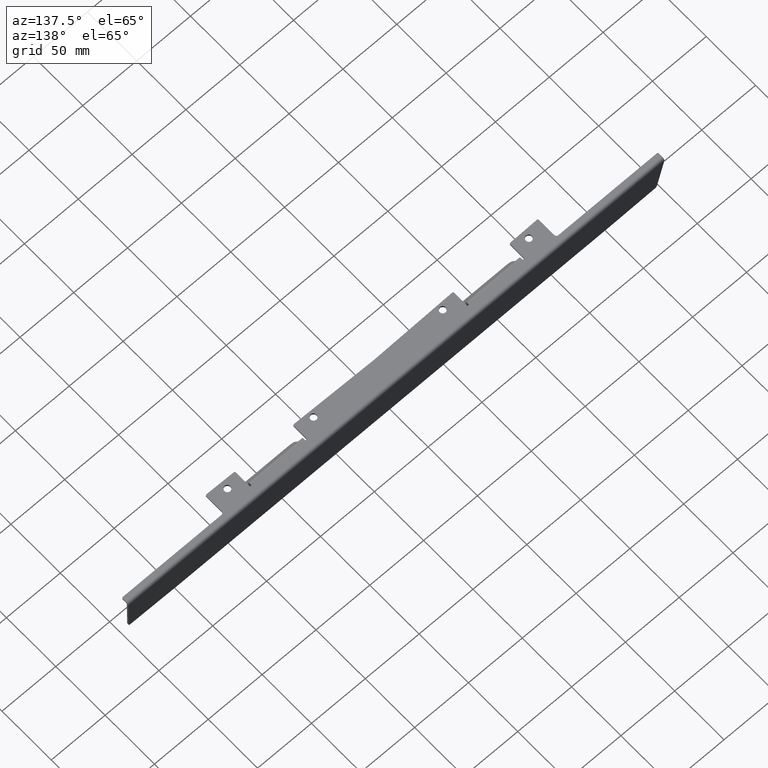
[diagram: clean part render]
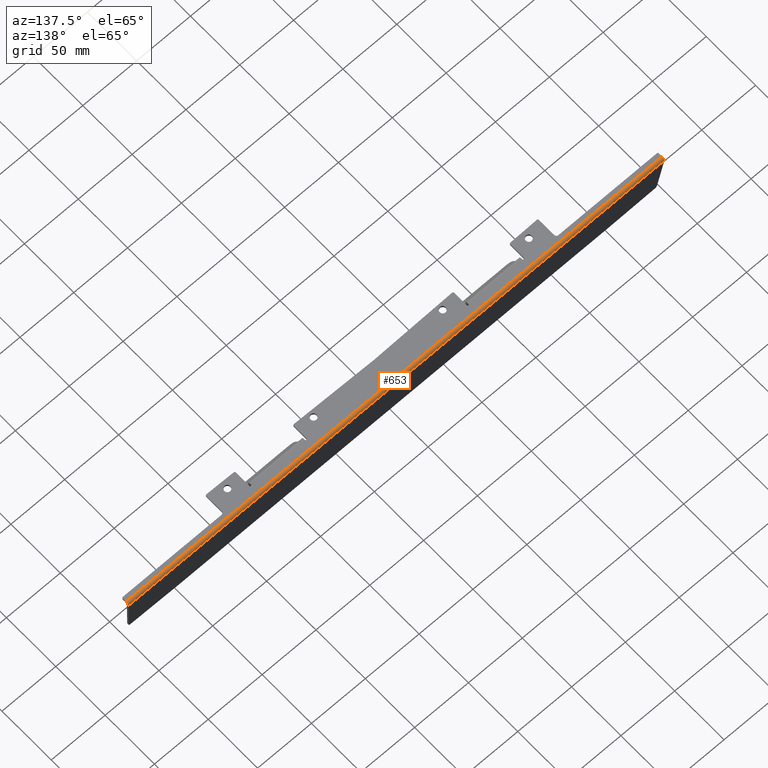
[diagram: same view with one face highlighted and labeled with its STEP entity id]
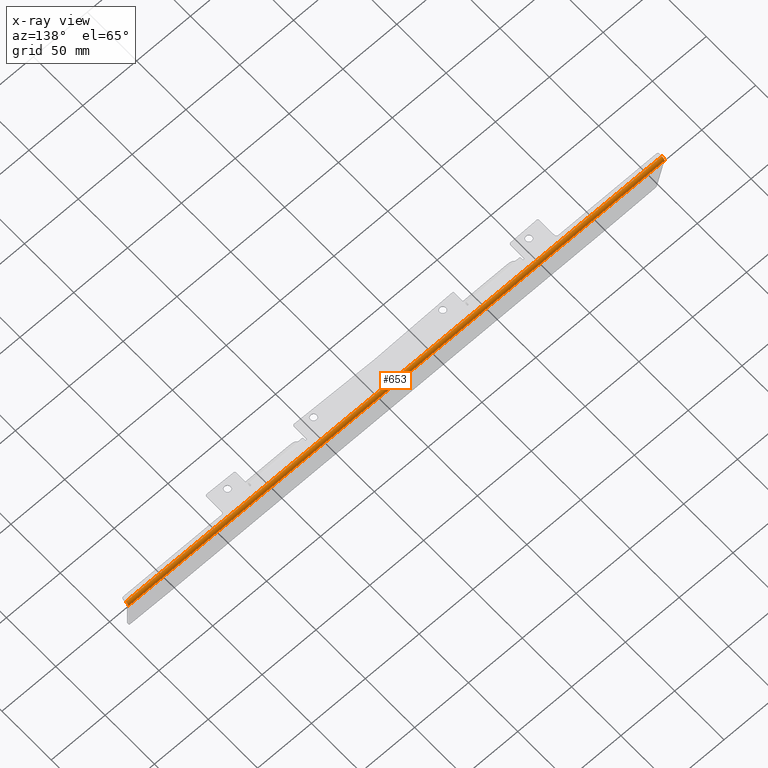
[diagram: x-ray of the same camera — body ghosted, the highlighted face saturated]
A machine part, auxiliary view. The second image highlights one B-rep face of the part: STEP entity #653.
The next image is the same camera in x-ray: the body ghosted, the highlighted face saturated — about 0% of this face is hidden behind the body in this view.
In plain terms, the highlighted cylindrical surface (edge-blend (fillet) strip) has radius 2.5 mm, axis along (1, 0, 0).
Its self-contained STEP definition (entity closure, byte-faithful):
#123 = VERTEX_POINT ( 'NONE', #2293 ) ;
#166 = VERTEX_POINT ( 'NONE', #806 ) ;
#265 = EDGE_CURVE ( 'NONE', #2834, #166, #1707, .T. ) ;
#323 = DIRECTION ( 'NONE',  ( 0.0000000000000000000, 0.0000000000000000000, -1.000000000000000000 ) ) ;
#495 = DIRECTION ( 'NONE',  ( 0.0000000000000000000, 2.081668171172165800E-015, -1.000000000000000000 ) ) ;
#532 = CIRCLE ( 'NONE', #2409, 2.500000000000003600 ) ;
#533 = DIRECTION ( 'NONE',  ( -1.000000000000000000, -0.0000000000000000000, -0.0000000000000000000 ) ) ;
#542 = CARTESIAN_POINT ( 'NONE',  ( 248.9999999999999400, 15.37738266714962900, -2.500000000000004400 ) ) ;
#556 = AXIS2_PLACEMENT_3D ( 'NONE', #542, #778, #323 ) ;
#653 = ADVANCED_FACE ( 'NONE', ( #1704 ), #927, .T. ) ;
#687 = CARTESIAN_POINT ( 'NONE',  ( 249.0000000000000000, 15.37738266714962900, -2.500000000000004400 ) ) ;
#743 = CARTESIAN_POINT ( 'NONE',  ( -249.0000000000000000, 15.37738266714962900, -2.500000000000004400 ) ) ;
#778 = DIRECTION ( 'NONE',  ( 1.000000000000000000, 0.0000000000000000000, 0.0000000000000000000 ) ) ;
#806 = CARTESIAN_POINT ( 'NONE',  ( -249.0000000000000000, 15.37738266714962700, 0.0000000000000000000 ) ) ;
#927 = CYLINDRICAL_SURFACE ( 'NONE', #2159, 2.500000000000003100 ) ;
#1078 = LINE ( 'NONE', #1770, #2471 ) ;
#1413 = EDGE_CURVE ( 'NONE', #166, #1925, #532, .T. ) ;
#1420 = ORIENTED_EDGE ( 'NONE', *, *, #265, .F. ) ;
#1532 = DIRECTION ( 'NONE',  ( 1.000000000000000000, 0.0000000000000000000, 0.0000000000000000000 ) ) ;
#1593 = ORIENTED_EDGE ( 'NONE', *, *, #1413, .F. ) ;
#1671 = EDGE_LOOP ( 'NONE', ( #1420, #2238, #2228, #1593 ) ) ;
#1704 = FACE_OUTER_BOUND ( 'NONE', #1671, .T. ) ;
#1707 = LINE ( 'NONE', #2483, #1949 ) ;
#1714 = CIRCLE ( 'NONE', #556, 2.500000000000003600 ) ;
#1744 = DIRECTION ( 'NONE',  ( 0.0000000000000000000, 0.9961946980917458800, -0.08715574274765480700 ) ) ;
#1770 = CARTESIAN_POINT ( 'NONE',  ( -249.0000000000000000, 17.86786941237900100, -2.717889356869138700 ) ) ;
#1925 = VERTEX_POINT ( 'NONE', #1987 ) ;
#1949 = VECTOR ( 'NONE', #533, 1000.000000000000000 ) ;
#1987 = CARTESIAN_POINT ( 'NONE',  ( -249.0000000000001100, 17.86786941237899700, -2.717889356869141800 ) ) ;
#1996 = DIRECTION ( 'NONE',  ( -1.000000000000000000, 1.209765342808851600E-018, 1.382768114237371700E-017 ) ) ;
#2021 = CARTESIAN_POINT ( 'NONE',  ( 248.9999999999999400, 15.37738266714962900, -8.673617379884035500E-016 ) ) ;
#2159 = AXIS2_PLACEMENT_3D ( 'NONE', #687, #1532, #1744 ) ;
#2228 = ORIENTED_EDGE ( 'NONE', *, *, #2704, .T. ) ;
#2238 = ORIENTED_EDGE ( 'NONE', *, *, #2498, .F. ) ;
#2293 = CARTESIAN_POINT ( 'NONE',  ( 248.9999999999999400, 17.86786941237891600, -2.717889356869139600 ) ) ;
#2409 = AXIS2_PLACEMENT_3D ( 'NONE', #743, #2513, #495 ) ;
#2471 = VECTOR ( 'NONE', #1996, 1000.000000000000000 ) ;
#2483 = CARTESIAN_POINT ( 'NONE',  ( -249.0000000000000000, 15.37738266714962700, 0.0000000000000000000 ) ) ;
#2498 = EDGE_CURVE ( 'NONE', #123, #2834, #1714, .T. ) ;
#2513 = DIRECTION ( 'NONE',  ( -1.000000000000000000, -0.0000000000000000000, -0.0000000000000000000 ) ) ;
#2704 = EDGE_CURVE ( 'NONE', #123, #1925, #1078, .T. ) ;
#2834 = VERTEX_POINT ( 'NONE', #2021 ) ;